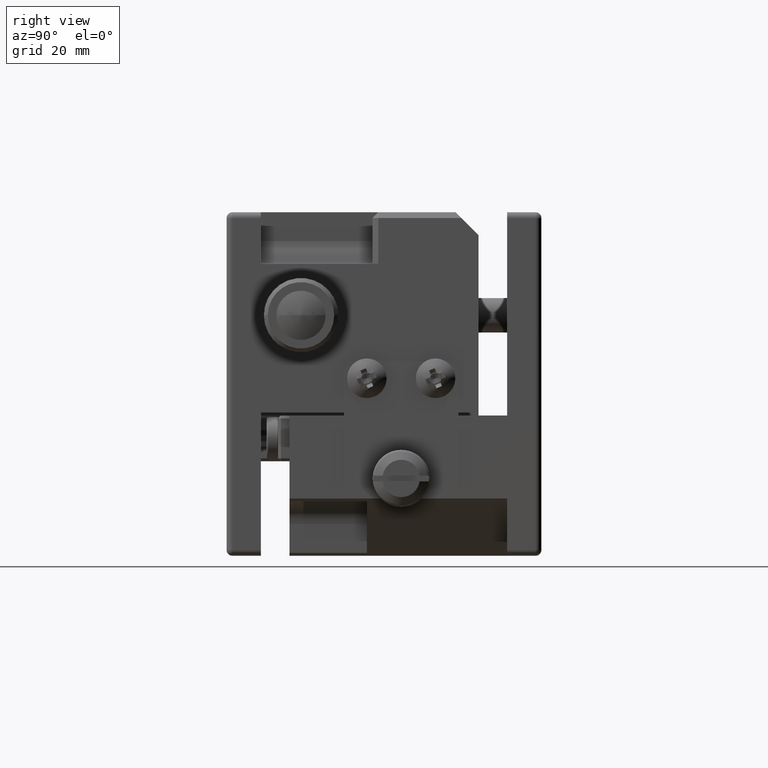
[diagram: clean part render]
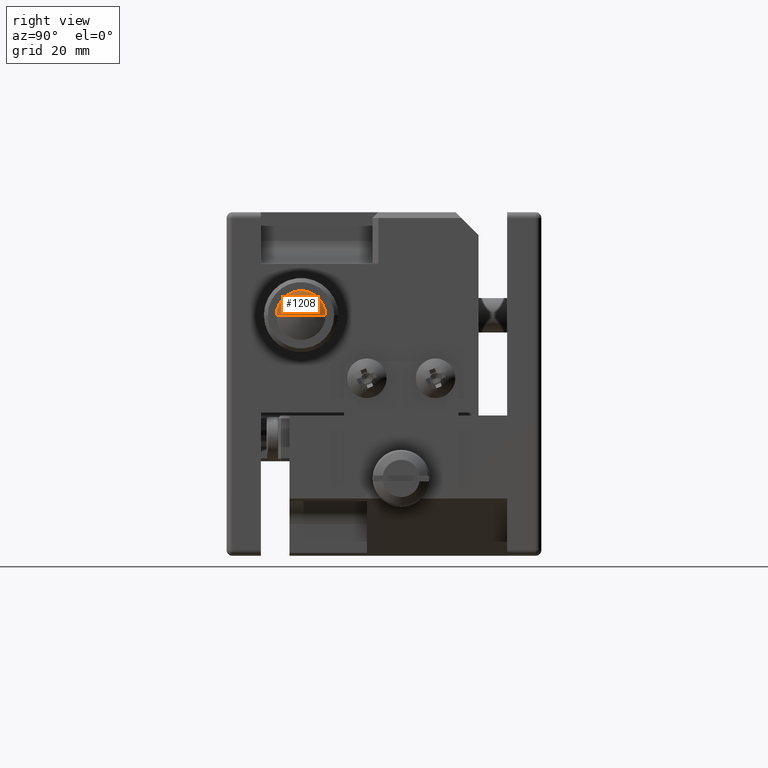
[diagram: same view with one face highlighted and labeled with its STEP entity id]
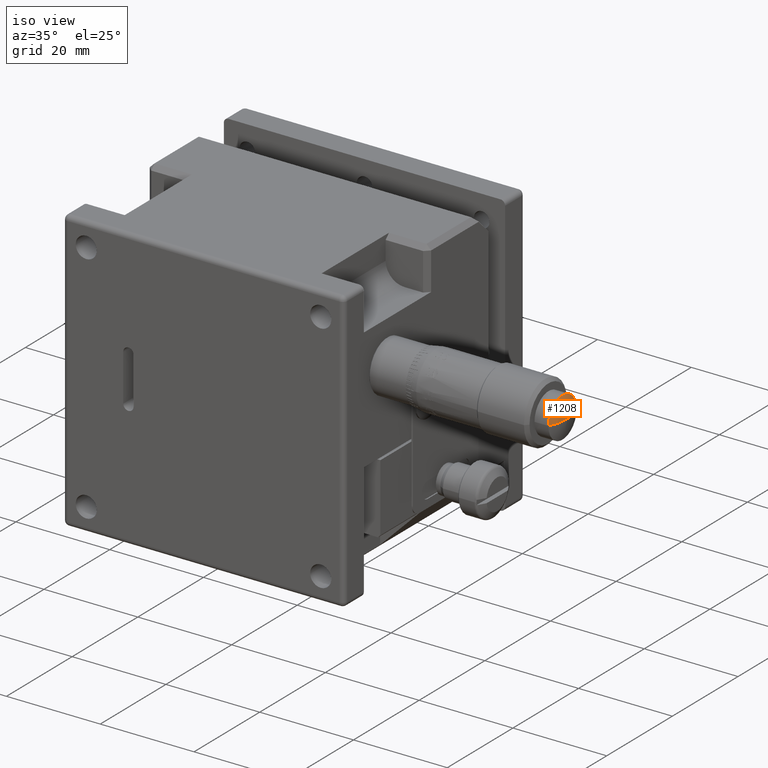
[diagram: same view with one face highlighted and labeled with its STEP entity id]
A machine part, right view. The second image highlights one B-rep face of the part: STEP entity #1208.
A second angle (iso view) of the same face is appended — the face is thin or edge-on in the first view.
In plain terms, the highlighted spherical surface has radius 9.5 mm.
Its self-contained STEP definition (entity closure, byte-faithful):
#1208 = ADVANCED_FACE ( 'NONE', ( #24702 ), #28874, .T. ) ;
#2029 = AXIS2_PLACEMENT_3D ( 'NONE', #35615, #22479, #49614 ) ;
#5337 = CARTESIAN_POINT ( 'NONE',  ( 67.47112591099869405, 8.699996999999799030, 12.00000000000000000 ) ) ;
#9842 = EDGE_CURVE ( 'NONE', #44302, #12100, #44064, .T. ) ;
#9952 = DIRECTION ( 'NONE',  ( 0.000000000000000000, -1.000000000000000000, -1.826024711554533618E-15 ) ) ;
#10596 = CIRCLE ( 'NONE', #2029, 4.300003000000109488 ) ;
#11590 = EDGE_LOOP ( 'NONE', ( #12449, #21716 ) ) ;
#12100 = VERTEX_POINT ( 'NONE', #40565 ) ;
#12449 = ORIENTED_EDGE ( 'NONE', *, *, #31341, .T. ) ;
#20526 = CARTESIAN_POINT ( 'NONE',  ( 59.00000000000000000, 13.00000000000000000, 12.00000000000000000 ) ) ;
#21380 = AXIS2_PLACEMENT_3D ( 'NONE', #20526, #29463, #57218 ) ;
#21716 = ORIENTED_EDGE ( 'NONE', *, *, #9842, .T. ) ;
#22479 = DIRECTION ( 'NONE',  ( 1.000000000000000000, -2.144394387393939770E-46, 1.063097655236970086E-31 ) ) ;
#24702 = FACE_OUTER_BOUND ( 'NONE', #11590, .T. ) ;
#28874 = SPHERICAL_SURFACE ( 'NONE', #21380, 9.500000000000000000 ) ;
#29463 = DIRECTION ( 'NONE',  ( -1.000000000000000000, 2.130546434474579029E-46, -1.060697800375329776E-31 ) ) ;
#31341 = EDGE_CURVE ( 'NONE', #12100, #44302, #10596, .T. ) ;
#35615 = CARTESIAN_POINT ( 'NONE',  ( 67.47112591099869405, 13.00000000000000000, 12.00000000000000000 ) ) ;
#36229 = CARTESIAN_POINT ( 'NONE',  ( 59.00000000000000000, 13.00000000000000000, 12.00000000000000000 ) ) ;
#36820 = DIRECTION ( 'NONE',  ( -1.023198055133501994E-31, -1.826024711554534801E-15, 1.000000000000000000 ) ) ;
#40565 = CARTESIAN_POINT ( 'NONE',  ( 67.47112591099869405, 17.30000300000014946, 12.00000000000000000 ) ) ;
#44064 = CIRCLE ( 'NONE', #56434, 9.500000000000000000 ) ;
#44302 = VERTEX_POINT ( 'NONE', #5337 ) ;
#49614 = DIRECTION ( 'NONE',  ( 0.000000000000000000, 1.000000000000000000, 2.017118913610947415E-15 ) ) ;
#56434 = AXIS2_PLACEMENT_3D ( 'NONE', #36229, #36820, #9952 ) ;
#57218 = DIRECTION ( 'NONE',  ( 0.000000000000000000, 1.000000000000000000, 2.008627182709987058E-15 ) ) ;